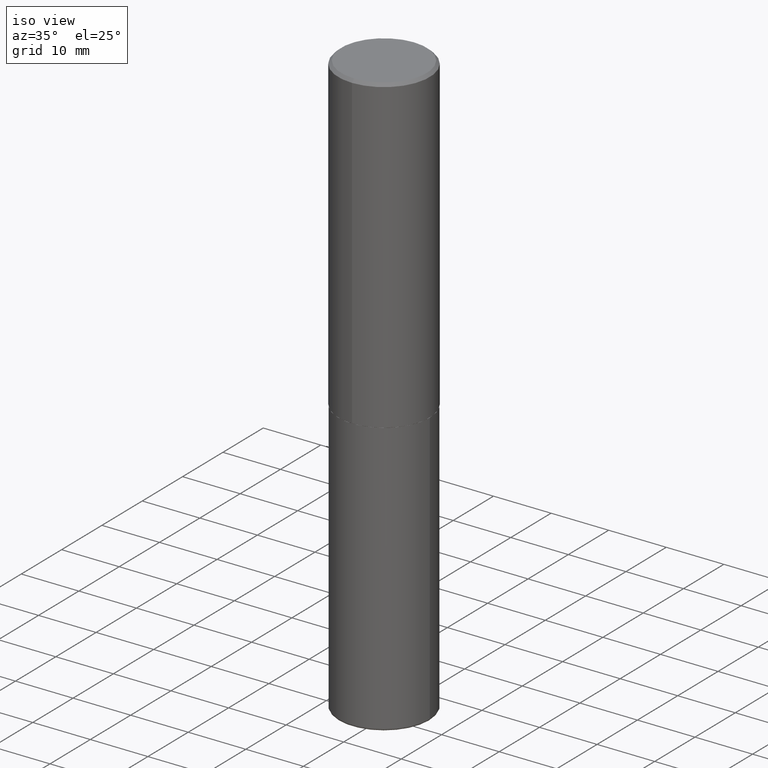
[diagram: clean part render]
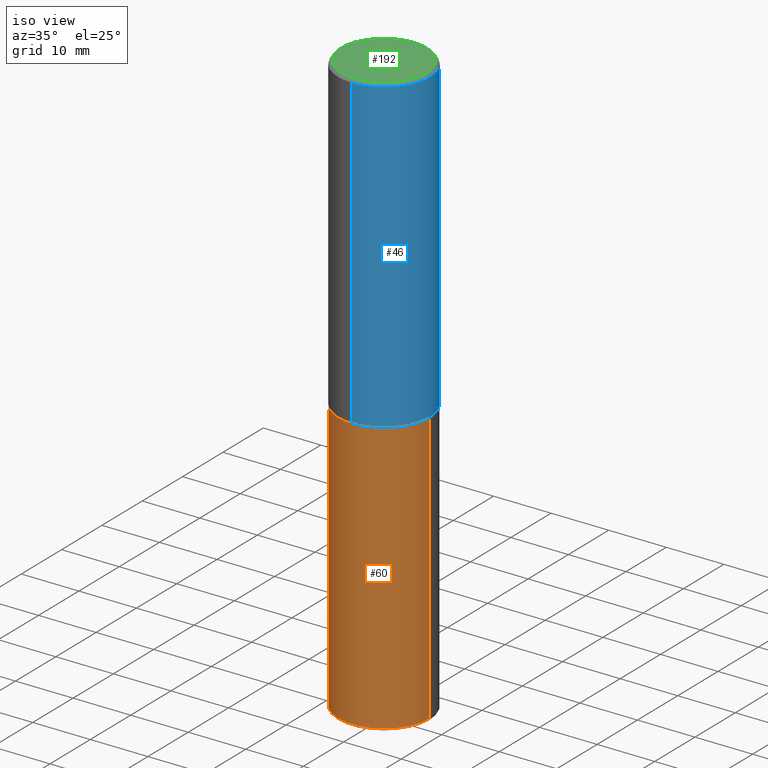
[diagram: same view with three faces highlighted in distinct colors, each labeled with its STEP entity id]
A machine part, iso view with three faces highlighted in distinct colors.
Their STEP definitions:

[orange] entity #60 — the highlighted cylindrical surface (partial cylindrical patch) has radius 7.9375 mm, axis along (-0, 0, 1).
#6 = EDGE_CURVE ( 'NONE', #7, #383, #271, .T. ) ;
#7 = VERTEX_POINT ( 'NONE', #266 ) ;
#56 = EDGE_CURVE ( 'NONE', #7, #84, #299, .T. ) ;
#60 = ADVANCED_FACE ( 'NONE', ( #67 ), #76, .T. ) ;
#67 = FACE_OUTER_BOUND ( 'NONE', #153, .T. ) ;
#76 = CYLINDRICAL_SURFACE ( 'NONE', #344, 0.3125000000000000000 ) ;
#84 = VERTEX_POINT ( 'NONE', #290 ) ;
#96 = VECTOR ( 'NONE', #291, 39.37007874015748143 ) ;
#101 = DIRECTION ( 'NONE',  ( 1.000000000000000000, -6.982962677686265133E-15, 0.000000000000000000 ) ) ;
#104 = DIRECTION ( 'NONE',  ( -2.445468806185136597E-29, 3.491481338843145583E-15, 1.000000000000000000 ) ) ;
#105 = CARTESIAN_POINT ( 'NONE',  ( 9.745193192647769069E-29, -1.391355313528993407E-14, -3.984999999999999876 ) ) ;
#109 = LINE ( 'NONE', #265, #345 ) ;
#153 = EDGE_LOOP ( 'NONE', ( #205, #375, #293, #417 ) ) ;
#187 = VERTEX_POINT ( 'NONE', #350 ) ;
#202 = AXIS2_PLACEMENT_3D ( 'NONE', #392, #104, #101 ) ;
#205 = ORIENTED_EDGE ( 'NONE', *, *, #56, .F. ) ;
#221 = DIRECTION ( 'NONE',  ( 1.000000000000000000, -6.982962677686266711E-15, 4.876176775795936353E-29 ) ) ;
#257 = EDGE_CURVE ( 'NONE', #383, #187, #109, .T. ) ;
#261 = DIRECTION ( 'NONE',  ( -2.445468806185136597E-29, 3.491481338843145583E-15, 1.000000000000000000 ) ) ;
#265 = CARTESIAN_POINT ( 'NONE',  ( 0.3125000000000000000, -2.182175836776958347E-15, 1.523805242436230075E-29 ) ) ;
#266 = CARTESIAN_POINT ( 'NONE',  ( -0.3125000000000000555, -1.169310708603962099E-14, -3.984999999999999876 ) ) ;
#271 = CIRCLE ( 'NONE', #282, 0.3125000000000000000 ) ;
#282 = AXIS2_PLACEMENT_3D ( 'NONE', #105, #261, #332 ) ;
#290 = CARTESIAN_POINT ( 'NONE',  ( -0.3125000000000000000, -8.446029440915494976E-15, -2.124999999999999556 ) ) ;
#291 = DIRECTION ( 'NONE',  ( -2.445468806185136877E-29, 3.491481338843145188E-15, 1.000000000000000000 ) ) ;
#292 = DIRECTION ( 'NONE',  ( -2.445468806185136597E-29, 3.491481338843145583E-15, 1.000000000000000000 ) ) ;
#293 = ORIENTED_EDGE ( 'NONE', *, *, #257, .T. ) ;
#299 = LINE ( 'NONE', #363, #96 ) ;
#311 = CARTESIAN_POINT ( 'NONE',  ( 0.000000000000000000, 0.000000000000000000, 0.000000000000000000 ) ) ;
#324 = CARTESIAN_POINT ( 'NONE',  ( 0.3125000000000000555, -1.609572897206689399E-14, -3.984999999999999876 ) ) ;
#332 = DIRECTION ( 'NONE',  ( 1.000000000000000000, -6.982962677686269077E-15, 0.000000000000000000 ) ) ;
#344 = AXIS2_PLACEMENT_3D ( 'NONE', #311, #292, #221 ) ;
#345 = VECTOR ( 'NONE', #397, 39.37007874015748143 ) ;
#350 = CARTESIAN_POINT ( 'NONE',  ( 0.3125000000000000000, -9.601573681818640393E-15, -2.124999999999999556 ) ) ;
#363 = CARTESIAN_POINT ( 'NONE',  ( -0.3125000000000000000, 2.220446049250313081E-15, -1.537167215704658232E-29 ) ) ;
#375 = ORIENTED_EDGE ( 'NONE', *, *, #6, .T. ) ;
#379 = CIRCLE ( 'NONE', #202, 0.3125000000000000000 ) ;
#383 = VERTEX_POINT ( 'NONE', #324 ) ;
#392 = CARTESIAN_POINT ( 'NONE',  ( 5.196621213143414147E-29, -7.419397845041682046E-15, -2.124999999999999556 ) ) ;
#397 = DIRECTION ( 'NONE',  ( -2.445468806185136877E-29, 3.491481338843145188E-15, 1.000000000000000000 ) ) ;
#403 = EDGE_CURVE ( 'NONE', #84, #187, #379, .T. ) ;
#417 = ORIENTED_EDGE ( 'NONE', *, *, #403, .F. ) ;

[blue] entity #46 — the highlighted cylindrical surface (partial cylindrical patch) has radius 7.9375 mm, axis along (-0, 0, 1).
#3 = DIRECTION ( 'NONE',  ( -2.444852431726452894E-29, 3.492364022149836358E-15, 1.000000000000000000 ) ) ;
#23 = LINE ( 'NONE', #318, #400 ) ;
#25 = CARTESIAN_POINT ( 'NONE',  ( 4.889704863452922148E-31, -6.984728044299695791E-17, -0.02000000000000006981 ) ) ;
#35 = CARTESIAN_POINT ( 'NONE',  ( 5.192866564986985411E-29, -7.417781183046251262E-15, -2.123999999999999666 ) ) ;
#40 = CARTESIAN_POINT ( 'NONE',  ( 0.000000000000000000, 0.000000000000000000, 0.000000000000000000 ) ) ;
#46 = ADVANCED_FACE ( 'NONE', ( #385 ), #102, .T. ) ;
#48 = DIRECTION ( 'NONE',  ( -2.444852431726452614E-29, 3.492364022149836358E-15, 1.000000000000000000 ) ) ;
#72 = VERTEX_POINT ( 'NONE', #343 ) ;
#78 = EDGE_CURVE ( 'NONE', #168, #233, #23, .T. ) ;
#86 = CIRCLE ( 'NONE', #248, 0.3125000000000002776 ) ;
#90 = ORIENTED_EDGE ( 'NONE', *, *, #394, .T. ) ;
#93 = ORIENTED_EDGE ( 'NONE', *, *, #78, .F. ) ;
#97 = AXIS2_PLACEMENT_3D ( 'NONE', #25, #152, #256 ) ;
#102 = CYLINDRICAL_SURFACE ( 'NONE', #112, 0.3125000000000001665 ) ;
#110 = CARTESIAN_POINT ( 'NONE',  ( 2.182175836776958741E-15, 0.3124999999999999445, -0.02000000000000116268 ) ) ;
#112 = AXIS2_PLACEMENT_3D ( 'NONE', #40, #235, #171 ) ;
#119 = EDGE_CURVE ( 'NONE', #233, #245, #316, .T. ) ;
#152 = DIRECTION ( 'NONE',  ( -2.444852431726452894E-29, 3.492364022149836358E-15, 1.000000000000000000 ) ) ;
#167 = DIRECTION ( 'NONE',  ( -6.982962677686265922E-15, -1.000000000000000000, 3.496765431890253764E-15 ) ) ;
#168 = VERTEX_POINT ( 'NONE', #226 ) ;
#171 = DIRECTION ( 'NONE',  ( -6.982962677686265133E-15, -1.000000000000000000, 3.492364022149836358E-15 ) ) ;
#224 = EDGE_LOOP ( 'NONE', ( #90, #347, #284, #93 ) ) ;
#226 = CARTESIAN_POINT ( 'NONE',  ( -2.182175836776908254E-15, -0.3125000000000077161, -2.123999999999998334 ) ) ;
#233 = VERTEX_POINT ( 'NONE', #366 ) ;
#235 = DIRECTION ( 'NONE',  ( -2.444852431726452894E-29, 3.492364022149836358E-15, 1.000000000000000000 ) ) ;
#245 = VERTEX_POINT ( 'NONE', #110 ) ;
#248 = AXIS2_PLACEMENT_3D ( 'NONE', #35, #3, #167 ) ;
#256 = DIRECTION ( 'NONE',  ( -6.982962677686265133E-15, -1.000000000000000000, 3.496765431890256920E-15 ) ) ;
#270 = CARTESIAN_POINT ( 'NONE',  ( 2.220446049250313475E-15, 0.3125000000000001665, -1.091363756921824478E-15 ) ) ;
#284 = ORIENTED_EDGE ( 'NONE', *, *, #119, .F. ) ;
#296 = VECTOR ( 'NONE', #48, 39.37007874015748143 ) ;
#316 = CIRCLE ( 'NONE', #97, 0.3125000000000000000 ) ;
#318 = CARTESIAN_POINT ( 'NONE',  ( -2.182175836776959136E-15, -0.3125000000000001665, 1.091363756921824478E-15 ) ) ;
#331 = EDGE_CURVE ( 'NONE', #72, #245, #355, .T. ) ;
#343 = CARTESIAN_POINT ( 'NONE',  ( 2.220446049250340297E-15, 0.3124999999999928391, -2.124000000000000554 ) ) ;
#347 = ORIENTED_EDGE ( 'NONE', *, *, #331, .T. ) ;
#348 = DIRECTION ( 'NONE',  ( -2.444852431726452614E-29, 3.492364022149836358E-15, 1.000000000000000000 ) ) ;
#355 = LINE ( 'NONE', #270, #296 ) ;
#366 = CARTESIAN_POINT ( 'NONE',  ( -2.143905624303602824E-15, -0.3125000000000000555, -0.01999999999999897693 ) ) ;
#385 = FACE_OUTER_BOUND ( 'NONE', #224, .T. ) ;
#394 = EDGE_CURVE ( 'NONE', #168, #72, #86, .T. ) ;
#400 = VECTOR ( 'NONE', #348, 39.37007874015748143 ) ;

[green] entity #192 — the highlighted planar face has unit normal (0, -0, -1).
#19 = AXIS2_PLACEMENT_3D ( 'NONE', #334, #77, #390 ) ;
#27 = PLANE ( 'NONE',  #337 ) ;
#57 = CARTESIAN_POINT ( 'NONE',  ( -2.075300644325887493E-15, -0.2924999999999999822, 1.030311686326234990E-15 ) ) ;
#62 = ORIENTED_EDGE ( 'NONE', *, *, #225, .T. ) ;
#63 = FACE_OUTER_BOUND ( 'NONE', #381, .T. ) ;
#68 = DIRECTION ( 'NONE',  ( -2.444852431726452894E-29, 3.492364022149836358E-15, 1.000000000000000000 ) ) ;
#71 = DIRECTION ( 'NONE',  ( -6.982962677686265133E-15, -1.000000000000000000, 3.492364022149836753E-15 ) ) ;
#77 = DIRECTION ( 'NONE',  ( -2.444852431726452894E-29, 3.492364022149836358E-15, 1.000000000000000000 ) ) ;
#89 = DIRECTION ( 'NONE',  ( 6.982962677686265922E-15, 1.000000000000000000, -3.492364022149836358E-15 ) ) ;
#95 = VERTEX_POINT ( 'NONE', #57 ) ;
#98 = CARTESIAN_POINT ( 'NONE',  ( -2.150299018297948745E-46, 3.071607443834507134E-32, 8.795209847407834549E-18 ) ) ;
#151 = CIRCLE ( 'NONE', #372, 0.2924999999999999822 ) ;
#176 = CARTESIAN_POINT ( 'NONE',  ( 2.112346210000095838E-15, 0.2924999999999999822, -1.012721266631419361E-15 ) ) ;
#191 = CIRCLE ( 'NONE', #19, 0.2924999999999999822 ) ;
#192 = ADVANCED_FACE ( 'NONE', ( #63 ), #27, .F. ) ;
#225 = EDGE_CURVE ( 'NONE', #339, #95, #151, .T. ) ;
#294 = EDGE_CURVE ( 'NONE', #95, #339, #191, .T. ) ;
#297 = ORIENTED_EDGE ( 'NONE', *, *, #294, .T. ) ;
#334 = CARTESIAN_POINT ( 'NONE',  ( -2.150299018297948745E-46, 3.071607443834507134E-32, 8.795209847407834549E-18 ) ) ;
#337 = AXIS2_PLACEMENT_3D ( 'NONE', #384, #416, #89 ) ;
#339 = VERTEX_POINT ( 'NONE', #176 ) ;
#372 = AXIS2_PLACEMENT_3D ( 'NONE', #98, #68, #71 ) ;
#381 = EDGE_LOOP ( 'NONE', ( #62, #297 ) ) ;
#384 = CARTESIAN_POINT ( 'NONE',  ( 2.042516583223232540E-15, 0.2924999999999999822, -1.017118871555123169E-15 ) ) ;
#390 = DIRECTION ( 'NONE',  ( -6.982962677686265133E-15, -1.000000000000000000, 3.492364022149836753E-15 ) ) ;
#416 = DIRECTION ( 'NONE',  ( 2.444852431726452333E-29, -3.492364022149836358E-15, -1.000000000000000000 ) ) ;